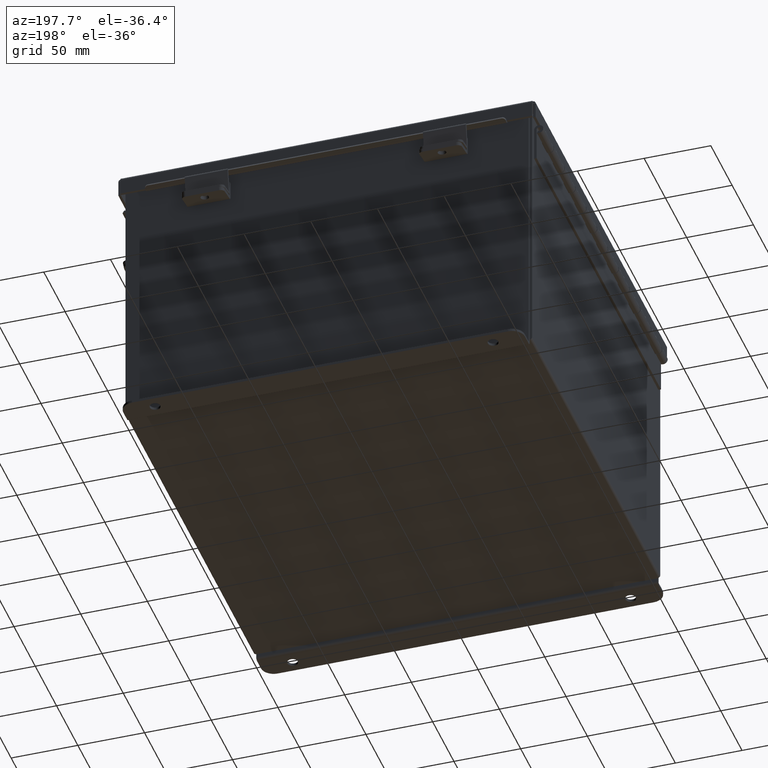
[diagram: clean part render]
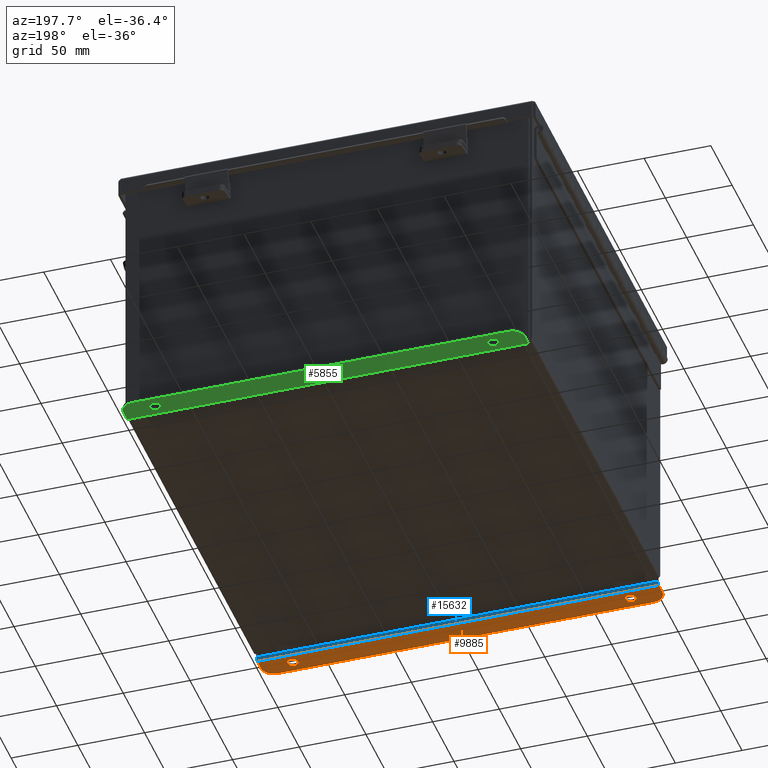
[diagram: same view with three faces highlighted in distinct colors, each labeled with its STEP entity id]
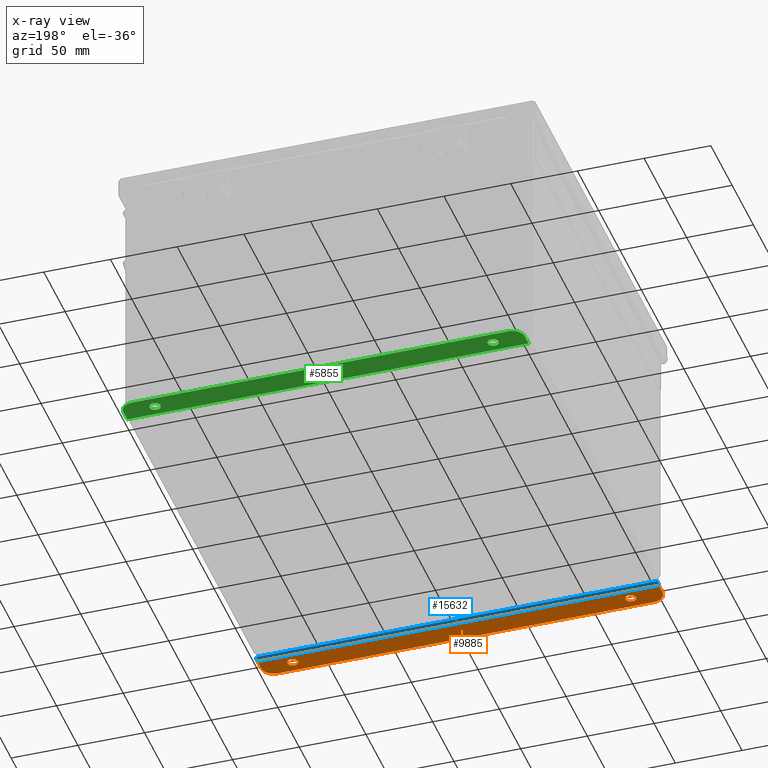
[diagram: x-ray of the same camera — body ghosted, the three highlighted faces saturated]
A machine part, auxiliary view with three faces highlighted in distinct colors.
The next image is the same camera in x-ray (body ghosted, the three faces saturated) — at least one of them is partly hidden behind the body in this view.
Their STEP definitions:

[orange] entity #9885 — the highlighted planar face has unit normal (0, -0, 1).
#46 = ORIENTED_EDGE ( 'NONE', *, *, #4999, .T. ) ;
#221 = LINE ( 'NONE', #15947, #10766 ) ;
#247 = EDGE_CURVE ( 'NONE', #1866, #17447, #11986, .T. ) ;
#689 = VERTEX_POINT ( 'NONE', #14702 ) ;
#704 = AXIS2_PLACEMENT_3D ( 'NONE', #7668, #1956, #10062 ) ;
#992 = DIRECTION ( 'NONE',  ( 0.0000000000000000000, -1.000000000000000000, 4.370956789862820400E-015 ) ) ;
#1141 = AXIS2_PLACEMENT_3D ( 'NONE', #3274, #1654, #10749 ) ;
#1402 = ORIENTED_EDGE ( 'NONE', *, *, #2376, .F. ) ;
#1609 = CARTESIAN_POINT ( 'NONE',  ( 5.550299999999999100, 0.3628000000000085000, -4.187000000000005600 ) ) ;
#1654 = DIRECTION ( 'NONE',  ( 0.0000000000000000000, -3.362274453740631800E-015, -1.000000000000000000 ) ) ;
#1680 = ORIENTED_EDGE ( 'NONE', *, *, #5762, .T. ) ;
#1705 = ORIENTED_EDGE ( 'NONE', *, *, #10686, .T. ) ;
#1866 = VERTEX_POINT ( 'NONE', #8026 ) ;
#1906 = PLANE ( 'NONE',  #4708 ) ;
#1956 = DIRECTION ( 'NONE',  ( 0.0000000000000000000, -3.362274453740631800E-015, -1.000000000000000000 ) ) ;
#2376 = EDGE_CURVE ( 'NONE', #11127, #5937, #4413, .T. ) ;
#2754 = CARTESIAN_POINT ( 'NONE',  ( -5.925300000000008900, 0.01300000000000120000, -4.187000000000000300 ) ) ;
#2773 = LINE ( 'NONE', #3771, #9635 ) ;
#2990 = DIRECTION ( 'NONE',  ( 0.0000000000000000000, -1.000000000000000000, 4.370956789862820400E-015 ) ) ;
#3015 = ORIENTED_EDGE ( 'NONE', *, *, #247, .F. ) ;
#3274 = CARTESIAN_POINT ( 'NONE',  ( 4.987799999999998200, 0.3628000000000085000, -4.187000000000001200 ) ) ;
#3544 = EDGE_LOOP ( 'NONE', ( #13507, #1402 ) ) ;
#3582 = DIRECTION ( 'NONE',  ( -4.919856193148104900E-031, -1.000000000000000000, 3.702694488566362300E-015 ) ) ;
#3626 = VECTOR ( 'NONE', #17268, 39.37007874015748100 ) ;
#3702 = CARTESIAN_POINT ( 'NONE',  ( -5.550299999999999100, 0.7378000000000000100, -4.187000000000002900 ) ) ;
#3771 = CARTESIAN_POINT ( 'NONE',  ( -5.925300000000009800, -1.420560956705417000E-014, -4.187000000000000300 ) ) ;
#3972 = EDGE_LOOP ( 'NONE', ( #1680, #7316, #1705, #6349, #46, #8402 ) ) ;
#4413 = CIRCLE ( 'NONE', #704, 0.1560000000000001900 ) ;
#4504 = VERTEX_POINT ( 'NONE', #2754 ) ;
#4708 = AXIS2_PLACEMENT_3D ( 'NONE', #14298, #6049, #15669 ) ;
#4998 = FACE_OUTER_BOUND ( 'NONE', #3972, .T. ) ;
#4999 = EDGE_CURVE ( 'NONE', #689, #14739, #10738, .T. ) ;
#5320 = CARTESIAN_POINT ( 'NONE',  ( 5.925299999999990200, 0.01300000000000885000, -4.187000000000003800 ) ) ;
#5680 = EDGE_CURVE ( 'NONE', #4504, #14739, #14609, .T. ) ;
#5762 = EDGE_CURVE ( 'NONE', #4504, #10112, #2773, .T. ) ;
#5937 = VERTEX_POINT ( 'NONE', #9874 ) ;
#6049 = DIRECTION ( 'NONE',  ( 0.0000000000000000000, 3.702694488566362300E-015, 1.000000000000000000 ) ) ;
#6126 = DIRECTION ( 'NONE',  ( 4.919856193148104900E-031, 1.000000000000000000, -3.702694488566362300E-015 ) ) ;
#6338 = AXIS2_PLACEMENT_3D ( 'NONE', #6940, #16544, #8290 ) ;
#6349 = ORIENTED_EDGE ( 'NONE', *, *, #17780, .T. ) ;
#6373 = CARTESIAN_POINT ( 'NONE',  ( 4.987799999999998200, 0.2068000000000083400, -4.187000000000000300 ) ) ;
#6584 = AXIS2_PLACEMENT_3D ( 'NONE', #1609, #11209, #2990 ) ;
#6677 = CARTESIAN_POINT ( 'NONE',  ( -4.987800000000000900, 0.3627999999999997300, -4.187000000000001200 ) ) ;
#6940 = CARTESIAN_POINT ( 'NONE',  ( 4.987799999999998200, 0.3628000000000085000, -4.187000000000001200 ) ) ;
#7175 = CIRCLE ( 'NONE', #6338, 0.1560000000000001900 ) ;
#7316 = ORIENTED_EDGE ( 'NONE', *, *, #11464, .T. ) ;
#7668 = CARTESIAN_POINT ( 'NONE',  ( -4.987800000000000900, 0.3627999999999997300, -4.187000000000001200 ) ) ;
#7987 = CARTESIAN_POINT ( 'NONE',  ( 5.925299999999990200, 0.01300000000000885000, -4.187000000000003800 ) ) ;
#8026 = CARTESIAN_POINT ( 'NONE',  ( 4.987799999999998200, 0.5188000000000087000, -4.187000000000001200 ) ) ;
#8046 = DIRECTION ( 'NONE',  ( 0.0000000000000000000, 1.000000000000000000, -3.502369222646487000E-015 ) ) ;
#8290 = DIRECTION ( 'NONE',  ( 0.0000000000000000000, 1.000000000000000000, -3.502369222646487000E-015 ) ) ;
#8402 = ORIENTED_EDGE ( 'NONE', *, *, #5680, .F. ) ;
#8628 = FACE_BOUND ( 'NONE', #3544, .T. ) ;
#9208 = DIRECTION ( 'NONE',  ( -0.0000000000000000000, -3.702694488566362300E-015, -1.000000000000000000 ) ) ;
#9635 = VECTOR ( 'NONE', #6126, 39.37007874015748100 ) ;
#9874 = CARTESIAN_POINT ( 'NONE',  ( -4.987800000000000900, 0.5187999999999999300, -4.187000000000001200 ) ) ;
#9885 = ADVANCED_FACE ( 'NONE', ( #8628, #11877, #4998 ), #1906, .F. ) ;
#10062 = DIRECTION ( 'NONE',  ( 0.0000000000000000000, 1.000000000000000000, -3.502369222646487000E-015 ) ) ;
#10110 = VERTEX_POINT ( 'NONE', #3702 ) ;
#10112 = VERTEX_POINT ( 'NONE', #13331 ) ;
#10475 = CARTESIAN_POINT ( 'NONE',  ( 5.550299999999999100, 0.7378000000000086700, -4.187000000000002900 ) ) ;
#10686 = EDGE_CURVE ( 'NONE', #10110, #13578, #221, .T. ) ;
#10738 = LINE ( 'NONE', #11508, #14422 ) ;
#10749 = DIRECTION ( 'NONE',  ( 0.0000000000000000000, 1.000000000000000000, -3.502369222646487000E-015 ) ) ;
#10766 = VECTOR ( 'NONE', #17343, 39.37007874015748100 ) ;
#11127 = VERTEX_POINT ( 'NONE', #15393 ) ;
#11209 = DIRECTION ( 'NONE',  ( -0.0000000000000000000, -3.702694488566362300E-015, -1.000000000000000000 ) ) ;
#11464 = EDGE_CURVE ( 'NONE', #10112, #10110, #12211, .T. ) ;
#11508 = CARTESIAN_POINT ( 'NONE',  ( 5.925299999999990200, -6.556435184794231700E-015, -4.187000000000003800 ) ) ;
#11877 = FACE_BOUND ( 'NONE', #15036, .T. ) ;
#11986 = CIRCLE ( 'NONE', #1141, 0.1560000000000001900 ) ;
#12211 = CIRCLE ( 'NONE', #14674, 0.3750000000000000600 ) ;
#13331 = CARTESIAN_POINT ( 'NONE',  ( -5.925300000000001800, 0.3627999999999997300, -4.187000000000001200 ) ) ;
#13507 = ORIENTED_EDGE ( 'NONE', *, *, #17585, .F. ) ;
#13578 = VERTEX_POINT ( 'NONE', #10475 ) ;
#13821 = CIRCLE ( 'NONE', #6584, 0.3750000000000000600 ) ;
#14298 = CARTESIAN_POINT ( 'NONE',  ( -2.035385365534024800E-024, -6.556435184794231700E-015, -4.187000000000000300 ) ) ;
#14422 = VECTOR ( 'NONE', #3582, 39.37007874015748100 ) ;
#14609 = LINE ( 'NONE', #5320, #3626 ) ;
#14674 = AXIS2_PLACEMENT_3D ( 'NONE', #17482, #9208, #992 ) ;
#14702 = CARTESIAN_POINT ( 'NONE',  ( 5.925299999999999100, 0.3628000000000085000, -4.187000000000001200 ) ) ;
#14739 = VERTEX_POINT ( 'NONE', #7987 ) ;
#15036 = EDGE_LOOP ( 'NONE', ( #3015, #16537 ) ) ;
#15393 = CARTESIAN_POINT ( 'NONE',  ( -4.987800000000000900, 0.2067999999999996000, -4.187000000000000300 ) ) ;
#15669 = DIRECTION ( 'NONE',  ( -4.919856193148104900E-031, -1.000000000000000000, 3.702694488566362300E-015 ) ) ;
#15947 = CARTESIAN_POINT ( 'NONE',  ( -2.035385365534024800E-024, 0.7378000000000011200, -4.187000000000002900 ) ) ;
#16282 = DIRECTION ( 'NONE',  ( 0.0000000000000000000, -3.362274453740631800E-015, -1.000000000000000000 ) ) ;
#16537 = ORIENTED_EDGE ( 'NONE', *, *, #16984, .F. ) ;
#16544 = DIRECTION ( 'NONE',  ( 0.0000000000000000000, -3.362274453740631800E-015, -1.000000000000000000 ) ) ;
#16984 = EDGE_CURVE ( 'NONE', #17447, #1866, #7175, .T. ) ;
#17268 = DIRECTION ( 'NONE',  ( 1.000000000000000000, 4.910036603141682400E-031, -0.0000000000000000000 ) ) ;
#17282 = CIRCLE ( 'NONE', #17587, 0.1560000000000001900 ) ;
#17343 = DIRECTION ( 'NONE',  ( 1.000000000000000000, 4.910036603141682400E-031, 0.0000000000000000000 ) ) ;
#17447 = VERTEX_POINT ( 'NONE', #6373 ) ;
#17482 = CARTESIAN_POINT ( 'NONE',  ( -5.550299999999999100, 0.3627999999999997300, -4.187000000000005600 ) ) ;
#17585 = EDGE_CURVE ( 'NONE', #5937, #11127, #17282, .T. ) ;
#17587 = AXIS2_PLACEMENT_3D ( 'NONE', #6677, #16282, #8046 ) ;
#17780 = EDGE_CURVE ( 'NONE', #13578, #689, #13821, .T. ) ;

[blue] entity #15632 — the highlighted cylindrical surface (edge-blend (fillet) strip) has radius 2.2276 mm, axis along (1, 0, -0).
#656 = EDGE_LOOP ( 'NONE', ( #5845, #13160, #7036, #11543 ) ) ;
#1085 = DIRECTION ( 'NONE',  ( 0.0000000000000000000, -3.699053013085864000E-015, -1.000000000000000000 ) ) ;
#2147 = LINE ( 'NONE', #17787, #9019 ) ;
#2714 = CYLINDRICAL_SURFACE ( 'NONE', #11174, 0.08770000000000026400 ) ;
#2754 = CARTESIAN_POINT ( 'NONE',  ( -5.925300000000008900, 0.01300000000000120000, -4.187000000000000300 ) ) ;
#2948 = DIRECTION ( 'NONE',  ( -1.000000000000000000, -4.910036603141682400E-031, 0.0000000000000000000 ) ) ;
#3626 = VECTOR ( 'NONE', #17268, 39.37007874015748100 ) ;
#4504 = VERTEX_POINT ( 'NONE', #2754 ) ;
#4856 = VERTEX_POINT ( 'NONE', #9707 ) ;
#5101 = EDGE_CURVE ( 'NONE', #12316, #4856, #2147, .T. ) ;
#5320 = CARTESIAN_POINT ( 'NONE',  ( 5.925299999999990200, 0.01300000000000885000, -4.187000000000003800 ) ) ;
#5680 = EDGE_CURVE ( 'NONE', #4504, #14739, #14609, .T. ) ;
#5845 = ORIENTED_EDGE ( 'NONE', *, *, #5101, .F. ) ;
#5900 = CIRCLE ( 'NONE', #7781, 0.08770000000000026400 ) ;
#6594 = CARTESIAN_POINT ( 'NONE',  ( 5.925299999999999100, 0.01300000000000885000, -4.099300000000003900 ) ) ;
#6880 = CARTESIAN_POINT ( 'NONE',  ( -5.925300000000000000, -0.07470000000000015500, -4.099299999999999500 ) ) ;
#7036 = ORIENTED_EDGE ( 'NONE', *, *, #5680, .T. ) ;
#7781 = AXIS2_PLACEMENT_3D ( 'NONE', #6594, #16209, #7979 ) ;
#7979 = DIRECTION ( 'NONE',  ( 0.0000000000000000000, 0.0000000000000000000, 1.000000000000000000 ) ) ;
#7987 = CARTESIAN_POINT ( 'NONE',  ( 5.925299999999990200, 0.01300000000000885000, -4.187000000000003800 ) ) ;
#8902 = AXIS2_PLACEMENT_3D ( 'NONE', #11173, #2948, #12549 ) ;
#9019 = VECTOR ( 'NONE', #13149, 39.37007874015748100 ) ;
#9707 = CARTESIAN_POINT ( 'NONE',  ( 5.925299999999999100, -0.07469999999999142600, -4.099300000000003900 ) ) ;
#9995 = FACE_OUTER_BOUND ( 'NONE', #656, .T. ) ;
#10054 = CIRCLE ( 'NONE', #8902, 0.08770000000000026400 ) ;
#10667 = CARTESIAN_POINT ( 'NONE',  ( -5.925300000000001800, 0.01300000000000010700, -4.099299999999999500 ) ) ;
#11173 = CARTESIAN_POINT ( 'NONE',  ( -5.925300000000000000, 0.01300000000000010700, -4.099299999999999500 ) ) ;
#11174 = AXIS2_PLACEMENT_3D ( 'NONE', #10667, #14780, #1085 ) ;
#11543 = ORIENTED_EDGE ( 'NONE', *, *, #16135, .F. ) ;
#12316 = VERTEX_POINT ( 'NONE', #6880 ) ;
#12444 = EDGE_CURVE ( 'NONE', #4504, #12316, #10054, .T. ) ;
#12549 = DIRECTION ( 'NONE',  ( 0.0000000000000000000, 0.0000000000000000000, 1.000000000000000000 ) ) ;
#13149 = DIRECTION ( 'NONE',  ( 1.000000000000000000, 4.910036603141682400E-031, -0.0000000000000000000 ) ) ;
#13160 = ORIENTED_EDGE ( 'NONE', *, *, #12444, .F. ) ;
#14609 = LINE ( 'NONE', #5320, #3626 ) ;
#14739 = VERTEX_POINT ( 'NONE', #7987 ) ;
#14780 = DIRECTION ( 'NONE',  ( -1.000000000000000000, -4.910036603141682400E-031, 0.0000000000000000000 ) ) ;
#15632 = ADVANCED_FACE ( 'NONE', ( #9995 ), #2714, .T. ) ;
#16135 = EDGE_CURVE ( 'NONE', #4856, #14739, #5900, .T. ) ;
#16209 = DIRECTION ( 'NONE',  ( 1.000000000000000000, 4.910036603141682400E-031, -0.0000000000000000000 ) ) ;
#17268 = DIRECTION ( 'NONE',  ( 1.000000000000000000, 4.910036603141682400E-031, -0.0000000000000000000 ) ) ;
#17787 = CARTESIAN_POINT ( 'NONE',  ( -5.925300000000001800, -0.07470000000000015500, -4.099299999999999500 ) ) ;

[green] entity #5855 — the highlighted planar face has unit normal (0, 0, 1).
#104 = ORIENTED_EDGE ( 'NONE', *, *, #8065, .F. ) ;
#340 = VERTEX_POINT ( 'NONE', #2302 ) ;
#380 = VERTEX_POINT ( 'NONE', #4957 ) ;
#457 = DIRECTION ( 'NONE',  ( 0.0000000000000000000, -3.702694488566362300E-015, -1.000000000000000000 ) ) ;
#487 = ORIENTED_EDGE ( 'NONE', *, *, #2371, .T. ) ;
#601 = LINE ( 'NONE', #11436, #7499 ) ;
#622 = VECTOR ( 'NONE', #7970, 39.37007874015748100 ) ;
#750 = DIRECTION ( 'NONE',  ( 0.0000000000000000000, -1.000000000000000000, 3.702694488566362300E-015 ) ) ;
#825 = DIRECTION ( 'NONE',  ( 0.0000000000000000000, 3.702694488566362300E-015, 1.000000000000000000 ) ) ;
#1043 = ORIENTED_EDGE ( 'NONE', *, *, #12556, .F. ) ;
#1215 = VECTOR ( 'NONE', #750, 39.37007874015748100 ) ;
#1226 = VERTEX_POINT ( 'NONE', #2107 ) ;
#1337 = ORIENTED_EDGE ( 'NONE', *, *, #17084, .T. ) ;
#1339 = EDGE_LOOP ( 'NONE', ( #10238, #1043 ) ) ;
#1490 = FACE_BOUND ( 'NONE', #16378, .T. ) ;
#1506 = EDGE_CURVE ( 'NONE', #11077, #2761, #3180, .T. ) ;
#1640 = AXIS2_PLACEMENT_3D ( 'NONE', #1918, #11510, #3303 ) ;
#1745 = ORIENTED_EDGE ( 'NONE', *, *, #11522, .T. ) ;
#1918 = CARTESIAN_POINT ( 'NONE',  ( 4.987799999999998200, 0.3627999999999997300, -4.187000000000002100 ) ) ;
#2107 = CARTESIAN_POINT ( 'NONE',  ( -5.925300000000000000, 0.01300000000000010700, -4.187000000000001200 ) ) ;
#2123 = DIRECTION ( 'NONE',  ( 0.0000000000000000000, -3.702694488566362300E-015, -1.000000000000000000 ) ) ;
#2137 = LINE ( 'NONE', #4108, #9427 ) ;
#2302 = CARTESIAN_POINT ( 'NONE',  ( -5.925300000000001800, 0.3627999999999997300, -4.187000000000002100 ) ) ;
#2371 = EDGE_CURVE ( 'NONE', #5731, #380, #8080, .T. ) ;
#2761 = VERTEX_POINT ( 'NONE', #17296 ) ;
#2893 = DIRECTION ( 'NONE',  ( -0.0000000000000000000, -3.702694488566362300E-015, -1.000000000000000000 ) ) ;
#3180 = CIRCLE ( 'NONE', #1640, 0.1560000000000001900 ) ;
#3298 = CARTESIAN_POINT ( 'NONE',  ( -5.550299999999999100, 0.3627999999999997300, -4.187000000000002100 ) ) ;
#3303 = DIRECTION ( 'NONE',  ( 0.0000000000000000000, 1.000000000000000000, -3.502369222646487000E-015 ) ) ;
#3367 = AXIS2_PLACEMENT_3D ( 'NONE', #8675, #457, #10077 ) ;
#3404 = AXIS2_PLACEMENT_3D ( 'NONE', #11120, #2893, #12498 ) ;
#3835 = EDGE_CURVE ( 'NONE', #340, #17269, #8841, .T. ) ;
#4108 = CARTESIAN_POINT ( 'NONE',  ( 0.0000000000000000000, 0.7378000000000000100, -4.187000000000003800 ) ) ;
#4957 = CARTESIAN_POINT ( 'NONE',  ( 5.925299999999999100, 0.01300000000000010700, -4.187000000000001200 ) ) ;
#5260 = CARTESIAN_POINT ( 'NONE',  ( 5.925299999999999100, -1.529834876451987200E-014, -4.187000000000001200 ) ) ;
#5731 = VERTEX_POINT ( 'NONE', #7030 ) ;
#5813 = CARTESIAN_POINT ( 'NONE',  ( 5.550299999999999100, 0.7378000000000000100, -4.187000000000003800 ) ) ;
#5855 = ADVANCED_FACE ( 'NONE', ( #8767, #1490, #12431 ), #10795, .F. ) ;
#6112 = DIRECTION ( 'NONE',  ( 0.0000000000000000000, -1.000000000000000000, 3.702694488566362300E-015 ) ) ;
#6591 = CARTESIAN_POINT ( 'NONE',  ( -5.925300000000001800, -1.529834876451987200E-014, -4.187000000000001200 ) ) ;
#6898 = DIRECTION ( 'NONE',  ( 1.000000000000000000, 0.0000000000000000000, -0.0000000000000000000 ) ) ;
#7030 = CARTESIAN_POINT ( 'NONE',  ( 5.925299999999999100, 0.3627999999999997300, -4.187000000000002100 ) ) ;
#7312 = DIRECTION ( 'NONE',  ( 1.000000000000000000, 4.610480471308228800E-017, -1.707120063075582100E-031 ) ) ;
#7499 = VECTOR ( 'NONE', #7312, 39.37007874015748100 ) ;
#7754 = ORIENTED_EDGE ( 'NONE', *, *, #1506, .F. ) ;
#7970 = DIRECTION ( 'NONE',  ( 0.0000000000000000000, 1.000000000000000000, -3.702694488566362300E-015 ) ) ;
#8035 = DIRECTION ( 'NONE',  ( 0.0000000000000000000, -3.702694488566362300E-015, -1.000000000000000000 ) ) ;
#8065 = EDGE_CURVE ( 'NONE', #2761, #11077, #12977, .T. ) ;
#8080 = LINE ( 'NONE', #5260, #1215 ) ;
#8345 = CIRCLE ( 'NONE', #3367, 0.1560000000000001900 ) ;
#8552 = AXIS2_PLACEMENT_3D ( 'NONE', #16047, #825, #6112 ) ;
#8675 = CARTESIAN_POINT ( 'NONE',  ( -4.987800000000000900, 0.3627999999999997300, -4.187000000000002100 ) ) ;
#8767 = FACE_BOUND ( 'NONE', #1339, .T. ) ;
#8841 = CIRCLE ( 'NONE', #10324, 0.3750000000000000600 ) ;
#9427 = VECTOR ( 'NONE', #6898, 39.37007874015748100 ) ;
#10015 = ORIENTED_EDGE ( 'NONE', *, *, #3835, .T. ) ;
#10077 = DIRECTION ( 'NONE',  ( 0.0000000000000000000, 1.000000000000000000, -3.502369222646487000E-015 ) ) ;
#10137 = CARTESIAN_POINT ( 'NONE',  ( -5.550299999999999100, 0.7378000000000000100, -4.187000000000003800 ) ) ;
#10238 = ORIENTED_EDGE ( 'NONE', *, *, #10630, .F. ) ;
#10324 = AXIS2_PLACEMENT_3D ( 'NONE', #3298, #10996, #11442 ) ;
#10330 = CARTESIAN_POINT ( 'NONE',  ( -4.987800000000000900, 0.3627999999999997300, -4.187000000000002100 ) ) ;
#10381 = CIRCLE ( 'NONE', #3404, 0.3750000000000000600 ) ;
#10630 = EDGE_CURVE ( 'NONE', #17335, #14536, #15309, .T. ) ;
#10795 = PLANE ( 'NONE',  #8552 ) ;
#10996 = DIRECTION ( 'NONE',  ( -0.0000000000000000000, -3.702694488566362300E-015, -1.000000000000000000 ) ) ;
#11065 = ORIENTED_EDGE ( 'NONE', *, *, #11633, .T. ) ;
#11077 = VERTEX_POINT ( 'NONE', #11126 ) ;
#11120 = CARTESIAN_POINT ( 'NONE',  ( 5.550299999999999100, 0.3627999999999997300, -4.187000000000002100 ) ) ;
#11126 = CARTESIAN_POINT ( 'NONE',  ( 4.987799999999998200, 0.5187999999999999300, -4.187000000000002900 ) ) ;
#11279 = EDGE_CURVE ( 'NONE', #1226, #380, #601, .T. ) ;
#11339 = LINE ( 'NONE', #6591, #622 ) ;
#11436 = CARTESIAN_POINT ( 'NONE',  ( 5.925299999999999100, 0.01300000000000010700, -4.187000000000001200 ) ) ;
#11442 = DIRECTION ( 'NONE',  ( 0.0000000000000000000, -1.000000000000000000, 4.370956789862820400E-015 ) ) ;
#11510 = DIRECTION ( 'NONE',  ( 0.0000000000000000000, -3.702694488566362300E-015, -1.000000000000000000 ) ) ;
#11522 = EDGE_CURVE ( 'NONE', #1226, #340, #11339, .T. ) ;
#11633 = EDGE_CURVE ( 'NONE', #17269, #17213, #2137, .T. ) ;
#11716 = DIRECTION ( 'NONE',  ( 0.0000000000000000000, 1.000000000000000000, -3.502369222646487000E-015 ) ) ;
#11946 = AXIS2_PLACEMENT_3D ( 'NONE', #10330, #2123, #11716 ) ;
#12431 = FACE_OUTER_BOUND ( 'NONE', #13127, .T. ) ;
#12498 = DIRECTION ( 'NONE',  ( 0.0000000000000000000, -1.000000000000000000, 4.370956789862820400E-015 ) ) ;
#12556 = EDGE_CURVE ( 'NONE', #14536, #17335, #8345, .T. ) ;
#12977 = CIRCLE ( 'NONE', #16678, 0.1560000000000001900 ) ;
#13127 = EDGE_LOOP ( 'NONE', ( #11065, #1337, #487, #13816, #1745, #10015 ) ) ;
#13816 = ORIENTED_EDGE ( 'NONE', *, *, #11279, .F. ) ;
#14378 = CARTESIAN_POINT ( 'NONE',  ( -4.987800000000000900, 0.5187999999999999300, -4.187000000000002900 ) ) ;
#14536 = VERTEX_POINT ( 'NONE', #17194 ) ;
#15309 = CIRCLE ( 'NONE', #11946, 0.1560000000000001900 ) ;
#16047 = CARTESIAN_POINT ( 'NONE',  ( 0.0000000000000000000, -1.529834876451987200E-014, -4.187000000000001200 ) ) ;
#16270 = CARTESIAN_POINT ( 'NONE',  ( 4.987799999999998200, 0.3627999999999997300, -4.187000000000002100 ) ) ;
#16378 = EDGE_LOOP ( 'NONE', ( #7754, #104 ) ) ;
#16678 = AXIS2_PLACEMENT_3D ( 'NONE', #16270, #8035, #17660 ) ;
#17084 = EDGE_CURVE ( 'NONE', #17213, #5731, #10381, .T. ) ;
#17194 = CARTESIAN_POINT ( 'NONE',  ( -4.987800000000000900, 0.2067999999999996000, -4.187000000000001200 ) ) ;
#17213 = VERTEX_POINT ( 'NONE', #5813 ) ;
#17269 = VERTEX_POINT ( 'NONE', #10137 ) ;
#17296 = CARTESIAN_POINT ( 'NONE',  ( 4.987799999999998200, 0.2067999999999996000, -4.187000000000001200 ) ) ;
#17335 = VERTEX_POINT ( 'NONE', #14378 ) ;
#17660 = DIRECTION ( 'NONE',  ( 0.0000000000000000000, 1.000000000000000000, -3.502369222646487000E-015 ) ) ;